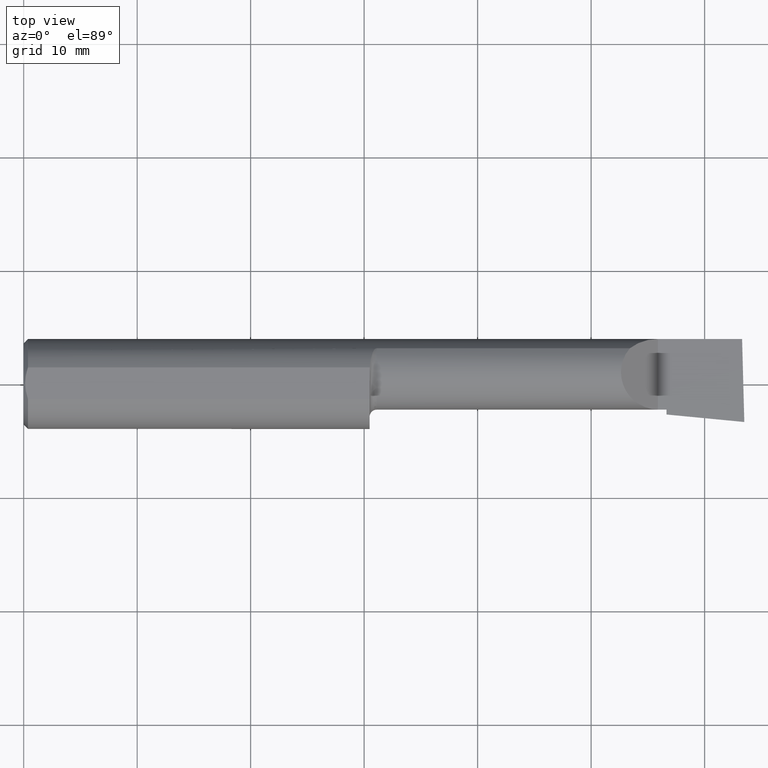
[diagram: clean part render]
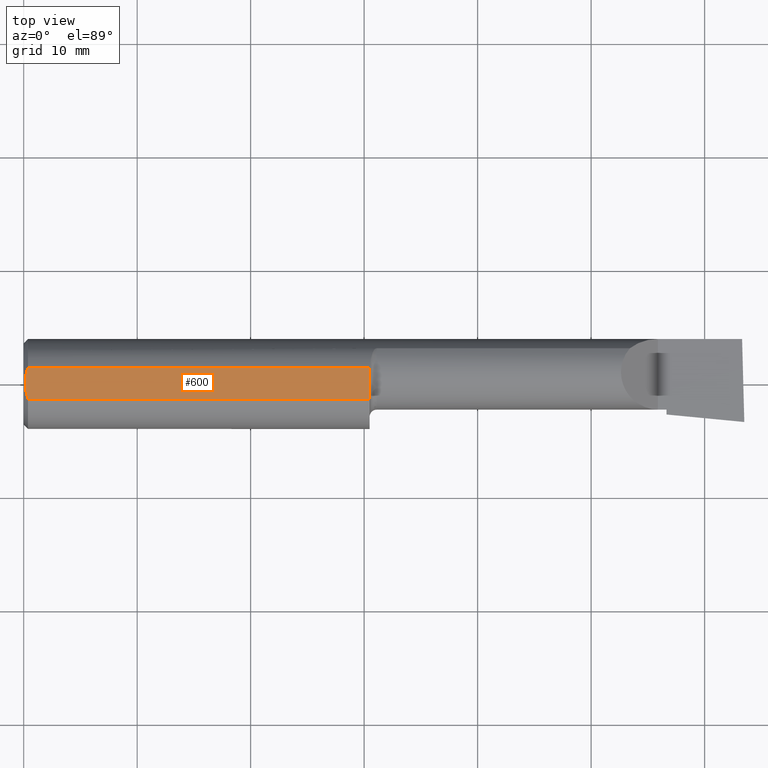
[diagram: same view with one face highlighted and labeled with its STEP entity id]
A machine part, top view. The second image highlights one B-rep face of the part: STEP entity #600.
In plain terms, the highlighted planar face has unit normal (0, -0, -1).
Its self-contained STEP definition (entity closure, byte-faithful):
#16 = VERTEX_POINT ( 'NONE', #379 ) ;
#27 = B_SPLINE_CURVE_WITH_KNOTS ( 'NONE', 3,
 ( #255, #358, #202, #210, #371, #42 ),
 .UNSPECIFIED., .F., .F.,
 ( 4, 2, 4 ),
 ( 0.002884734412378666280, 0.003593604306281239329, 0.004302474200183812811 ),
 .UNSPECIFIED. ) ;
#34 = CARTESIAN_POINT ( 'NONE',  ( 0.01499999999999999944, -0.05497272050753897882, 0.1461000000000000076 ) ) ;
#37 = CARTESIAN_POINT ( 'NONE',  ( 0.000000000000000000, -0.05497272050753897882, 0.1461000000000000076 ) ) ;
#38 = ORIENTED_EDGE ( 'NONE', *, *, #286, .F. ) ;
#42 = CARTESIAN_POINT ( 'NONE',  ( 0.01499999999999999424, 0.05497272050753903433, 0.1460999999999999521 ) ) ;
#46 = CARTESIAN_POINT ( 'NONE',  ( 0.009356849677356088302, -0.03706298561014170767, 0.1461000000000000354 ) ) ;
#74 = DIRECTION ( 'NONE',  ( 1.000000000000000000, 0.000000000000000000, 0.000000000000000000 ) ) ;
#87 = CARTESIAN_POINT ( 'NONE',  ( 1.200713348720346074, 0.05497272050753925637, 0.1460999999999999521 ) ) ;
#98 = LINE ( 'NONE', #572, #199 ) ;
#133 = CARTESIAN_POINT ( 'NONE',  ( 0.01499999999999999424, 0.05497272050753903433, 0.1460999999999999521 ) ) ;
#136 = ORIENTED_EDGE ( 'NONE', *, *, #577, .F. ) ;
#176 = CARTESIAN_POINT ( 'NONE',  ( 0.01499999999999999944, -0.05497272050753897882, 0.1461000000000000076 ) ) ;
#199 = VECTOR ( 'NONE', #329, 39.37007874015748143 ) ;
#201 = VERTEX_POINT ( 'NONE', #295 ) ;
#202 = CARTESIAN_POINT ( 'NONE',  ( 0.005929349363809115203, 0.01879672308419498561, 0.1461000000000000076 ) ) ;
#210 = CARTESIAN_POINT ( 'NONE',  ( 0.009371209226504017067, 0.03711161584255317364, 0.1460999999999999799 ) ) ;
#211 = EDGE_LOOP ( 'NONE', ( #216, #463, #136, #289, #38, #424 ) ) ;
#216 = ORIENTED_EDGE ( 'NONE', *, *, #334, .T. ) ;
#255 = CARTESIAN_POINT ( 'NONE',  ( 0.005000000000000177913, 2.057148876208899831E-17, 0.1460999999999999799 ) ) ;
#257 = CARTESIAN_POINT ( 'NONE',  ( 0.005910707775482461519, -0.01866948012536269463, 0.1460999999999999799 ) ) ;
#272 = CARTESIAN_POINT ( 'NONE',  ( 0.005000000000000177913, 2.057148876208899831E-17, 0.1460999999999999799 ) ) ;
#286 = EDGE_CURVE ( 'NONE', #473, #471, #629, .T. ) ;
#289 = ORIENTED_EDGE ( 'NONE', *, *, #655, .F. ) ;
#295 = CARTESIAN_POINT ( 'NONE',  ( 1.199999999999999956, -0.05497272050753900657, 0.1461000000000000076 ) ) ;
#308 = CARTESIAN_POINT ( 'NONE',  ( 1.200497536416571087, 0.01428560316177572564, 0.1461000000000000076 ) ) ;
#313 = DIRECTION ( 'NONE',  ( -1.000000000000000000, -0.000000000000000000, -0.000000000000000000 ) ) ;
#321 = FACE_OUTER_BOUND ( 'NONE', #211, .T. ) ;
#323 = CARTESIAN_POINT ( 'NONE',  ( 1.199999999999999956, 0.004133650856201329452, 0.1460999999999999521 ) ) ;
#329 = DIRECTION ( 'NONE',  ( 6.829619984160658046E-18, 1.000000000000000000, -1.656870447394628111E-16 ) ) ;
#334 = EDGE_CURVE ( 'NONE', #201, #16, #98, .T. ) ;
#358 = CARTESIAN_POINT ( 'NONE',  ( 0.005000000000000138882, 0.009391435229055633896, 0.1460999999999999521 ) ) ;
#359 = VECTOR ( 'NONE', #313, 39.37007874015748143 ) ;
#369 = VECTOR ( 'NONE', #74, 39.37007874015748143 ) ;
#371 = CARTESIAN_POINT ( 'NONE',  ( 0.01187749995209277584, 0.04610609988228757394, 0.1460999999999999799 ) ) ;
#375 = EDGE_CURVE ( 'NONE', #16, #627, #551, .T. ) ;
#379 = CARTESIAN_POINT ( 'NONE',  ( 1.199999999999999956, -0.006091019061449954100, 0.1460999999999999799 ) ) ;
#409 = CARTESIAN_POINT ( 'NONE',  ( 2.500000000000000000, 0.2061000000000000332, 0.1460999999999999521 ) ) ;
#417 = PLANE ( 'NONE',  #435 ) ;
#424 = ORIENTED_EDGE ( 'NONE', *, *, #648, .F. ) ;
#435 = AXIS2_PLACEMENT_3D ( 'NONE', #409, #580, #472 ) ;
#450 = CARTESIAN_POINT ( 'NONE',  ( 0.005000000000000177913, 2.057148876208899831E-17, 0.1460999999999999799 ) ) ;
#463 = ORIENTED_EDGE ( 'NONE', *, *, #375, .T. ) ;
#471 = VERTEX_POINT ( 'NONE', #450 ) ;
#472 = DIRECTION ( 'NONE',  ( 0.000000000000000000, 1.000000000000000000, -1.656870447394628111E-16 ) ) ;
#473 = VERTEX_POINT ( 'NONE', #176 ) ;
#506 = VERTEX_POINT ( 'NONE', #133 ) ;
#525 = LINE ( 'NONE', #37, #359 ) ;
#534 = CARTESIAN_POINT ( 'NONE',  ( 0.005000000000000139749, -0.009384304010803560733, 0.1460999999999999799 ) ) ;
#536 = CARTESIAN_POINT ( 'NONE',  ( 1.199999999999999956, -0.006091019061449954100, 0.1460999999999999799 ) ) ;
#548 = LINE ( 'NONE', #560, #369 ) ;
#551 = B_SPLINE_CURVE_WITH_KNOTS ( 'NONE', 3,
 ( #536, #323, #308, #622, #698, #87 ),
 .UNSPECIFIED., .F., .F.,
 ( 4, 2, 4 ),
 ( 0.01118866809925229272, 0.01196373645042567158, 0.01273880480159904870 ),
 .UNSPECIFIED. ) ;
#560 = CARTESIAN_POINT ( 'NONE',  ( 0.000000000000000000, 0.05497272050753903433, 0.1460999999999999521 ) ) ;
#572 = CARTESIAN_POINT ( 'NONE',  ( 1.199999999999999956, 0.2061000000000000332, 0.1460999999999999521 ) ) ;
#577 = EDGE_CURVE ( 'NONE', #506, #627, #548, .T. ) ;
#580 = DIRECTION ( 'NONE',  ( 0.000000000000000000, -1.656870447394628111E-16, -1.000000000000000000 ) ) ;
#588 = CARTESIAN_POINT ( 'NONE',  ( 0.01190375560897322625, -0.04618065518901639382, 0.1461000000000000076 ) ) ;
#600 = ADVANCED_FACE ( 'NONE', ( #321 ), #417, .F. ) ;
#622 = CARTESIAN_POINT ( 'NONE',  ( 1.201002510363909925, 0.03462329751451428961, 0.1460999999999999799 ) ) ;
#627 = VERTEX_POINT ( 'NONE', #688 ) ;
#629 = B_SPLINE_CURVE_WITH_KNOTS ( 'NONE', 3,
 ( #34, #588, #46, #257, #534, #272 ),
 .UNSPECIFIED., .F., .F.,
 ( 4, 2, 4 ),
 ( 0.001468071159906499112, 0.002176402786142582479, 0.002884734412378666280 ),
 .UNSPECIFIED. ) ;
#648 = EDGE_CURVE ( 'NONE', #201, #473, #525, .T. ) ;
#655 = EDGE_CURVE ( 'NONE', #471, #506, #27, .T. ) ;
#688 = CARTESIAN_POINT ( 'NONE',  ( 1.200713348720346074, 0.05497272050753925637, 0.1460999999999999521 ) ) ;
#698 = CARTESIAN_POINT ( 'NONE',  ( 1.200983344077626302, 0.04479712784712947676, 0.1460999999999999799 ) ) ;